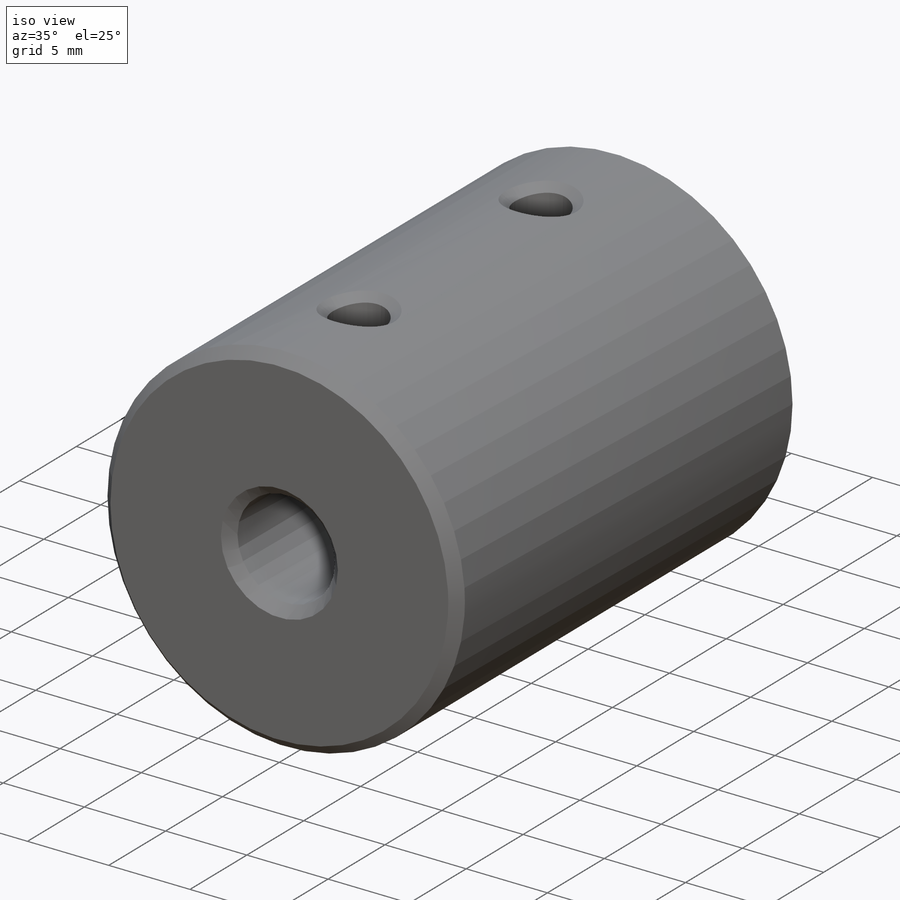
[diagram: iso view]
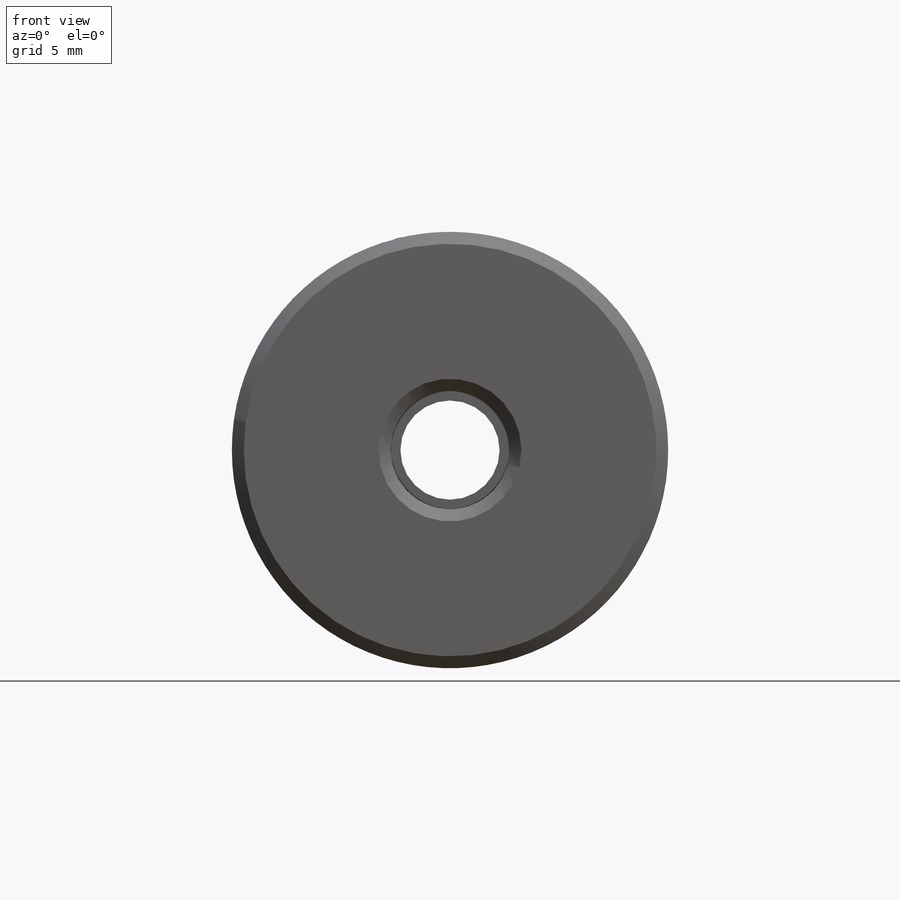
[diagram: front view]
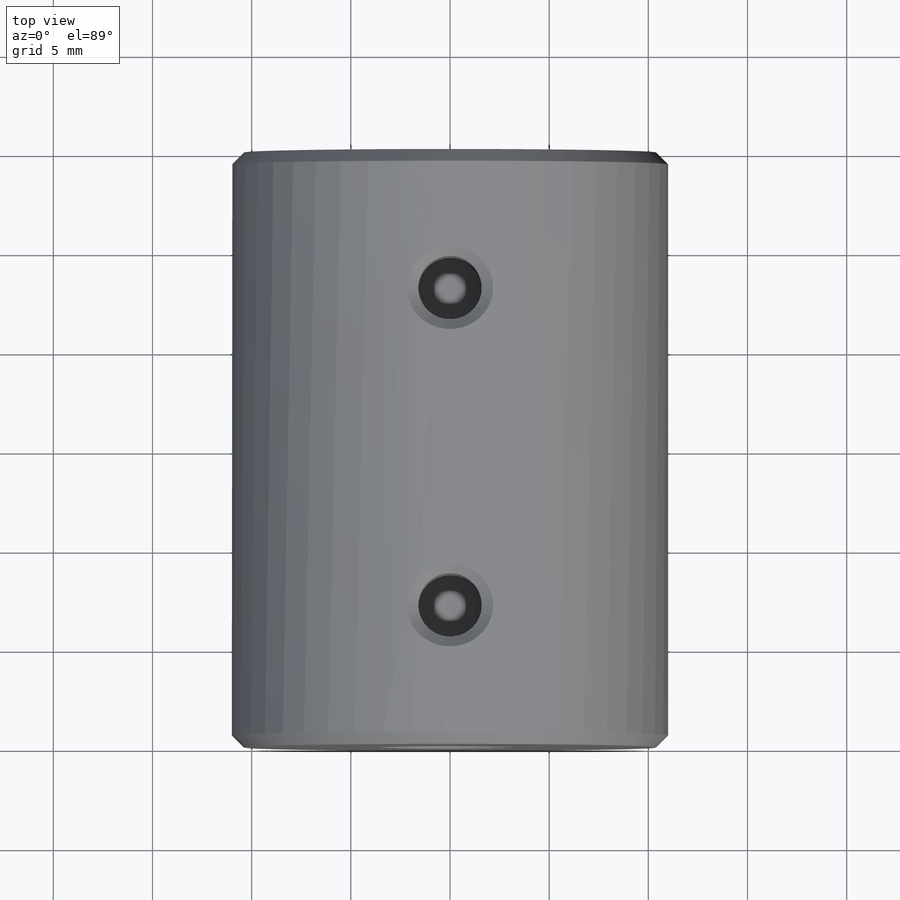
[diagram: top view]
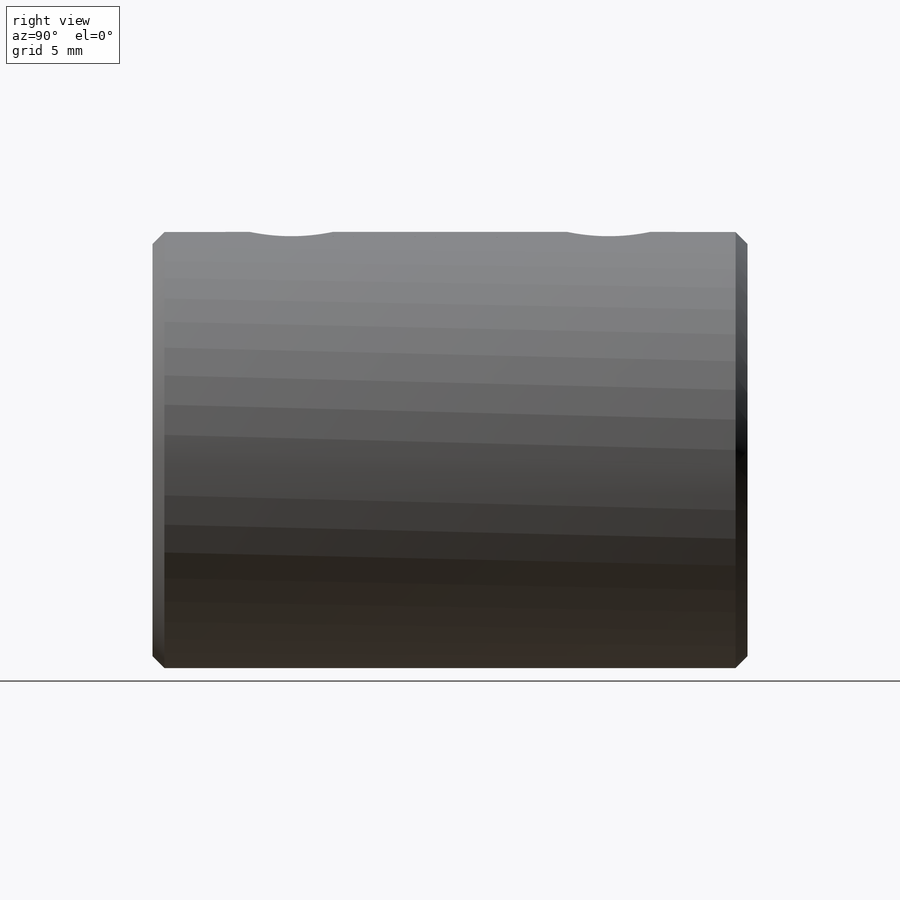
[diagram: right view]
SOLIDWORKS PART (.sldprt)
format: sldprt  version: not decoded by parser v0  size: 231,936 bytes
history: native  units: mm
features: sketch x4, plane x3, cut_extrude x3, chamfer x2, material x1, extrude x1 (+8 scaffold rows collapsed)
feature tree (22):
  scaffold x8  (default folders/planes/origin — collapsed)
  material  "Matériau <non spécifié>"
  plane  "Plan de face"
  plane  "Plan de dessus"
  plane  "Plan de droite"
  sketch  "Esquisse1"  dims[D1=22.0mm]
  extrude  "Boss.-Extru.1"  Depth=30mm
  sketch  "Esquisse3"  dims[D1=5.0mm]
  cut_extrude  "Enlèv. mat.-Extru.1"  [1 undecoded]
  sketch  "Esquisse4"  dims[D1=6.0mm]
  cut_extrude  "Enlèv. mat.-Extru.2"  Depth=15mm
  chamfer  "Chanfrein1"  Distance=0.6mm Angle=45deg
  sketch  "Esquisse5"  dims[D1=3.2mm D2=3.2mm D3=7.0mm D4=7.0mm D5=11.0mm D6=26.4mm]
  cut_extrude  "Enlèv. mat.-Extru.3"  Depth=17mm
  chamfer  "Chanfrein2"  Distance=0.6mm Angle=45deg
decode coverage: 9 of 10 modeling features carry decoded parameters
note: 1 parameter value undecoded
note: suppression state not decoded; provenance and decode notes live in map.json
